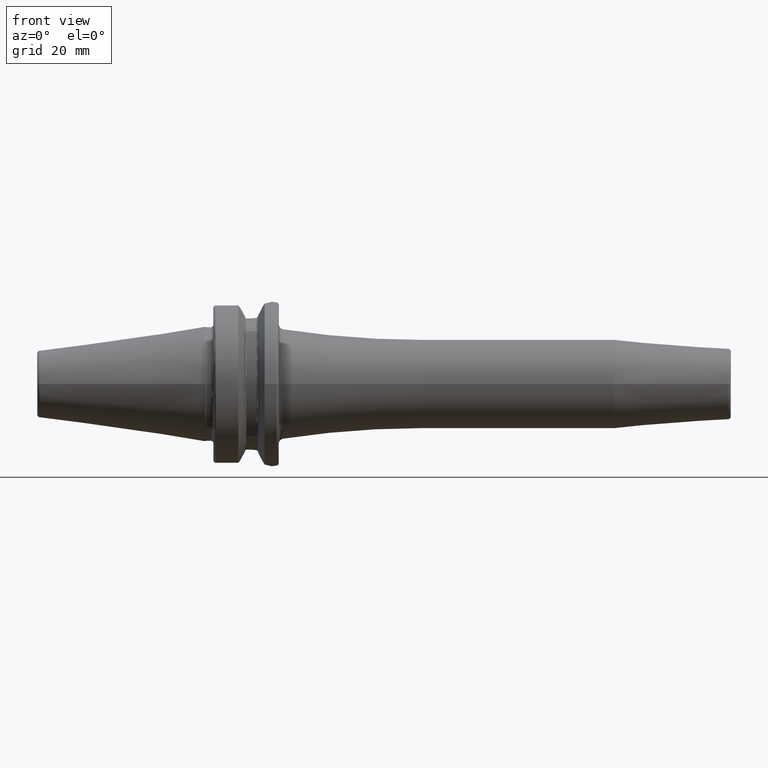
[diagram: clean part render]
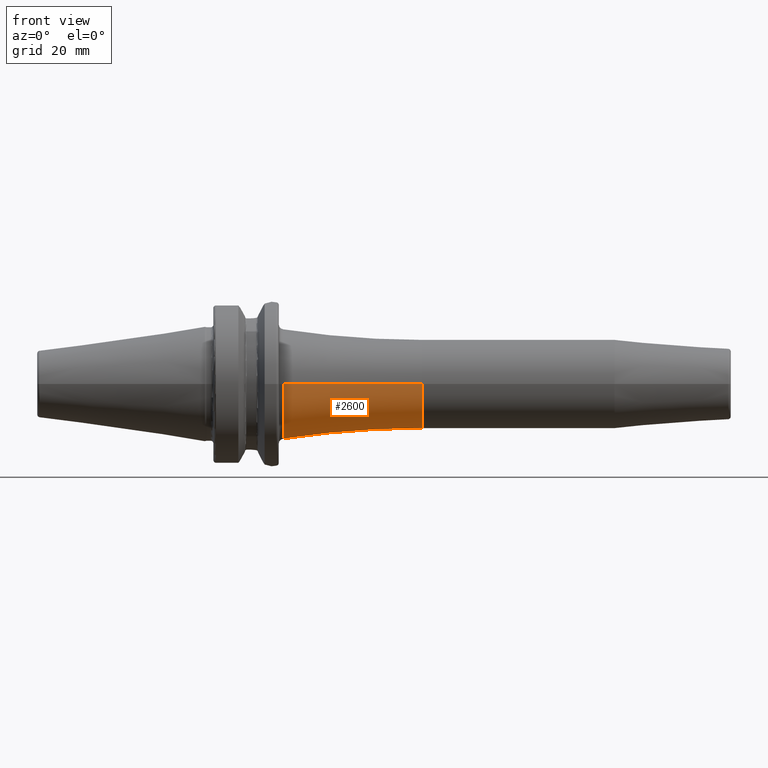
[diagram: same view with one face highlighted and labeled with its STEP entity id]
A machine part, front view. The second image highlights one B-rep face of the part: STEP entity #2600.
In plain terms, the highlighted toroidal blend (fillet) surface has major radius 367 mm and minor (blend) radius 350 mm.
Its self-contained STEP definition (entity closure, byte-faithful):
#861=CARTESIAN_POINT('',(2.869540229885E1,0.E0,0.E0));
#862=DIRECTION('',(1.E0,0.E0,0.E0));
#863=DIRECTION('',(0.E0,-1.E0,0.E0));
#864=AXIS2_PLACEMENT_3D('',#861,#862,#863);
#866=CARTESIAN_POINT('',(8.2E1,-3.67E2,-8.988907505742E-14));
#867=DIRECTION('',(0.E0,0.E0,1.E0));
#868=DIRECTION('',(0.E0,1.E0,0.E0));
#869=AXIS2_PLACEMENT_3D('',#866,#867,#868);
#871=CARTESIAN_POINT('',(8.2E1,3.67E2,4.494453752871E-14));
#872=DIRECTION('',(0.E0,0.E0,-1.E0));
#873=DIRECTION('',(0.E0,-1.E0,0.E0));
#874=AXIS2_PLACEMENT_3D('',#871,#872,#873);
#876=CARTESIAN_POINT('',(8.2E1,0.E0,0.E0));
#877=DIRECTION('',(1.E0,0.E0,0.E0));
#878=DIRECTION('',(0.E0,-1.E0,0.E0));
#879=AXIS2_PLACEMENT_3D('',#876,#877,#878);
#1433=CARTESIAN_POINT('',(8.2E1,1.7E1,0.E0));
#1434=CARTESIAN_POINT('',(8.2E1,-1.7E1,0.E0));
#1435=VERTEX_POINT('',#1433);
#1436=VERTEX_POINT('',#1434);
#1441=CARTESIAN_POINT('',(2.869540229885E1,-2.108292921002E1,0.E0));
#1442=CARTESIAN_POINT('',(2.869540229885E1,2.108292921002E1,0.E0));
#1443=VERTEX_POINT('',#1441);
#1444=VERTEX_POINT('',#1442);
#2588=CARTESIAN_POINT('',(8.2E1,0.E0,0.E0));
#2589=DIRECTION('',(1.E0,0.E0,0.E0));
#2590=DIRECTION('',(0.E0,-1.E0,0.E0));
#2591=AXIS2_PLACEMENT_3D('',#2588,#2589,#2590);
#2592=TOROIDAL_SURFACE('',#2591,3.67E2,3.5E2);
#2593=ORIENTED_EDGE('',*,*,#2553,.F.);
#2594=ORIENTED_EDGE('',*,*,#2583,.F.);
#2596=ORIENTED_EDGE('',*,*,#2595,.T.);
#2597=ORIENTED_EDGE('',*,*,#2579,.T.);
#2598=EDGE_LOOP('',(#2593,#2594,#2596,#2597));
#2599=FACE_OUTER_BOUND('',#2598,.F.);
#2600=ADVANCED_FACE('',(#2599),#2592,.F.);
#865=CIRCLE('',#864,2.108292921002E1);
#870=CIRCLE('',#869,3.5E2);
#875=CIRCLE('',#874,3.5E2);
#880=CIRCLE('',#879,1.7E1);
#2553=EDGE_CURVE('',#1443,#1444,#865,.T.);
#2579=EDGE_CURVE('',#1435,#1444,#875,.T.);
#2583=EDGE_CURVE('',#1436,#1443,#870,.T.);
#2595=EDGE_CURVE('',#1436,#1435,#880,.T.);